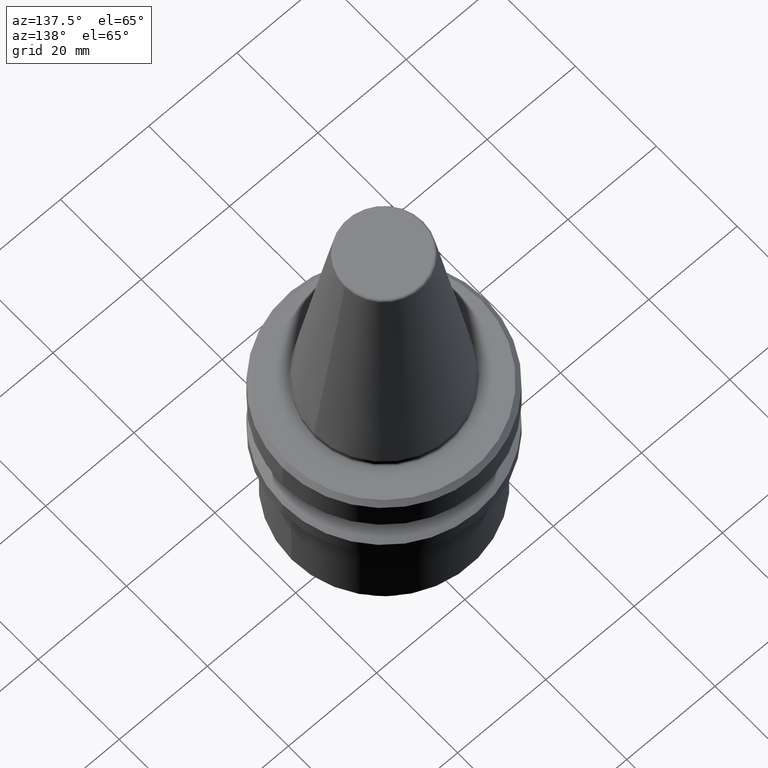
[diagram: clean part render]
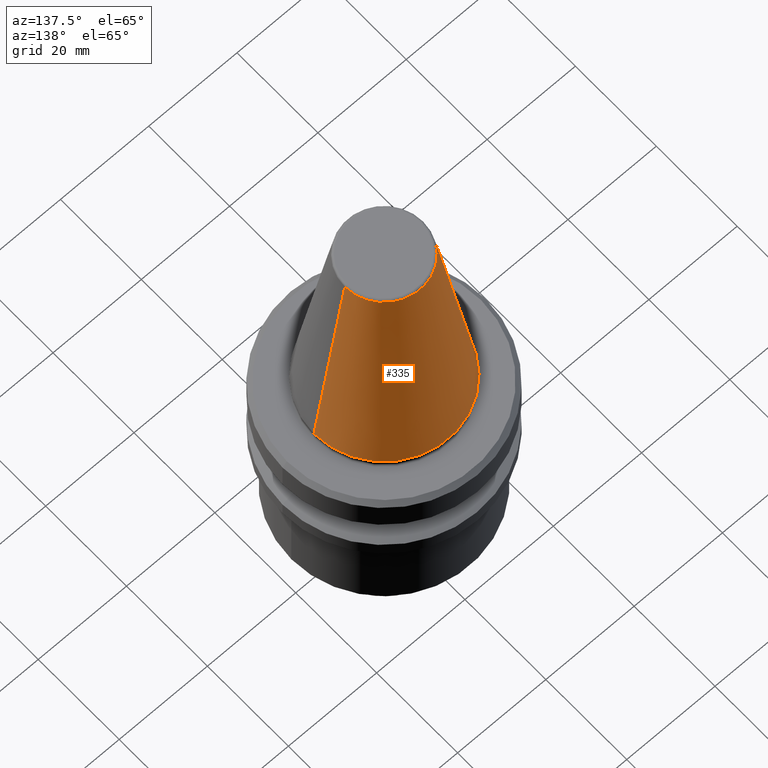
[diagram: same view with one face highlighted and labeled with its STEP entity id]
A machine part, auxiliary view. The second image highlights one B-rep face of the part: STEP entity #335.
In plain terms, the highlighted conical surface has half-angle 8.297 deg.
Its self-contained STEP definition (entity closure, byte-faithful):
#10 = DIRECTION ( 'NONE',  ( 0.0000000000000000000, 0.0000000000000000000, -1.000000000000000000 ) ) ;
#32 = CARTESIAN_POINT ( 'NONE',  ( 0.0000000000000000000, 0.0000000000000000000, -1.249000902703301100E-013 ) ) ;
#38 = EDGE_CURVE ( 'NONE', #360, #454, #417, .T. ) ;
#58 = EDGE_LOOP ( 'NONE', ( #200, #258, #72, #739 ) ) ;
#72 = ORIENTED_EDGE ( 'NONE', *, *, #605, .T. ) ;
#94 = CARTESIAN_POINT ( 'NONE',  ( 8.878994820584161100, 1.515745026156934700E-015, 47.97215411344124200 ) ) ;
#118 = CONICAL_SURFACE ( 'NONE', #516, 15.87500000000011500, 0.1448138461595524200 ) ;
#121 = AXIS2_PLACEMENT_3D ( 'NONE', #32, #366, #182 ) ;
#138 = DIRECTION ( 'NONE',  ( -0.0000000000000000000, -0.0000000000000000000, 1.000000000000000000 ) ) ;
#141 = CIRCLE ( 'NONE', #168, 8.878994820584161100 ) ;
#168 = AXIS2_PLACEMENT_3D ( 'NONE', #829, #138, #943 ) ;
#182 = DIRECTION ( 'NONE',  ( 1.000000000000000000, 0.0000000000000000000, 0.0000000000000000000 ) ) ;
#200 = ORIENTED_EDGE ( 'NONE', *, *, #446, .F. ) ;
#251 = CIRCLE ( 'NONE', #121, 15.87500000000011500 ) ;
#258 = ORIENTED_EDGE ( 'NONE', *, *, #761, .T. ) ;
#320 = CARTESIAN_POINT ( 'NONE',  ( 15.87500000000011500, 0.0000000000000000000, -1.249000902703301100E-013 ) ) ;
#335 = ADVANCED_FACE ( 'NONE', ( #800 ), #118, .T. ) ;
#336 = CARTESIAN_POINT ( 'NONE',  ( -15.87500000000011500, 0.0000000000000000000, -1.249000902703301100E-013 ) ) ;
#360 = VERTEX_POINT ( 'NONE', #736 ) ;
#366 = DIRECTION ( 'NONE',  ( -0.0000000000000000000, -0.0000000000000000000, 1.000000000000000000 ) ) ;
#392 = CARTESIAN_POINT ( 'NONE',  ( -15.87500000000011500, 1.944126793646437000E-015, -1.249000902703301100E-013 ) ) ;
#393 = LINE ( 'NONE', #831, #769 ) ;
#411 = DIRECTION ( 'NONE',  ( -1.000000000000000000, 0.0000000000000000000, 0.0000000000000000000 ) ) ;
#417 = LINE ( 'NONE', #336, #822 ) ;
#446 = EDGE_CURVE ( 'NONE', #569, #360, #141, .T. ) ;
#454 = VERTEX_POINT ( 'NONE', #392 ) ;
#457 = CARTESIAN_POINT ( 'NONE',  ( 0.0000000000000000000, 0.0000000000000000000, -1.249000902703301100E-013 ) ) ;
#516 = AXIS2_PLACEMENT_3D ( 'NONE', #457, #10, #411 ) ;
#569 = VERTEX_POINT ( 'NONE', #94 ) ;
#605 = EDGE_CURVE ( 'NONE', #690, #454, #251, .T. ) ;
#690 = VERTEX_POINT ( 'NONE', #320 ) ;
#736 = CARTESIAN_POINT ( 'NONE',  ( -8.878994820584161100, 0.0000000000000000000, 47.97215411344124200 ) ) ;
#739 = ORIENTED_EDGE ( 'NONE', *, *, #38, .F. ) ;
#758 = DIRECTION ( 'NONE',  ( 0.1443082268835002600, 1.767266081435086000E-017, -0.9895327865481469100 ) ) ;
#761 = EDGE_CURVE ( 'NONE', #569, #690, #393, .T. ) ;
#769 = VECTOR ( 'NONE', #758, 999.9999999999998900 ) ;
#800 = FACE_OUTER_BOUND ( 'NONE', #58, .T. ) ;
#822 = VECTOR ( 'NONE', #924, 999.9999999999998900 ) ;
#829 = CARTESIAN_POINT ( 'NONE',  ( 0.0000000000000000000, 0.0000000000000000000, 47.97215411344124200 ) ) ;
#831 = CARTESIAN_POINT ( 'NONE',  ( 15.87500000000011500, 1.944126793646437400E-015, -1.249000902703301100E-013 ) ) ;
#924 = DIRECTION ( 'NONE',  ( -0.1443082268835002600, 0.0000000000000000000, -0.9895327865481469100 ) ) ;
#943 = DIRECTION ( 'NONE',  ( 1.000000000000000000, 0.0000000000000000000, 0.0000000000000000000 ) ) ;